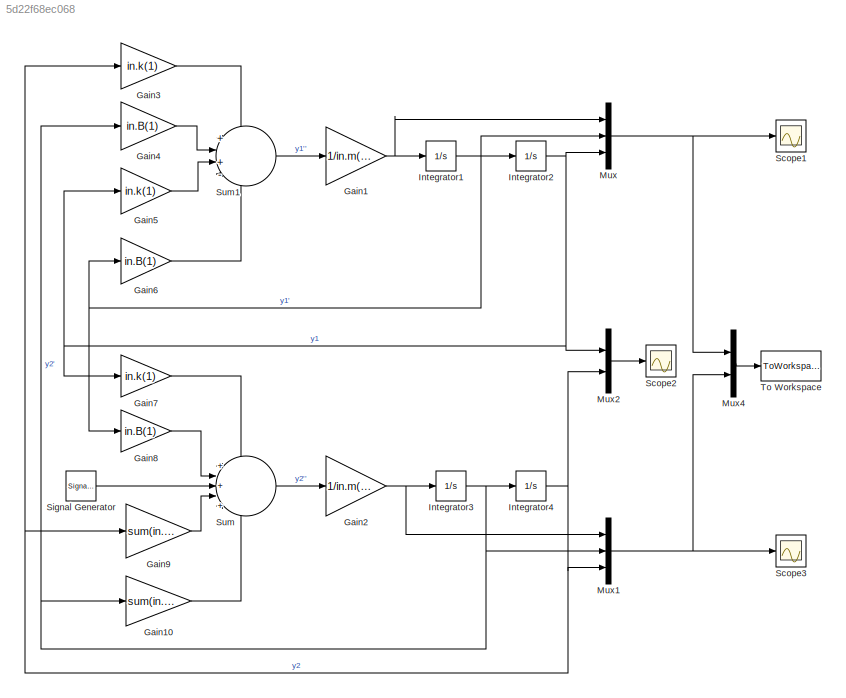
MODEL slx_5d22f68ec068
KIND model
BLOCK [Gain] Gain1
  Gain = 1/in.m(1)
  OutDataTypeStr = Inherit: Inherit via internal rule
  ParamDataTypeStr = Inherit: Inherit via internal rule
  SaturateOnIntegerOverflow = off
BLOCK [Gain] Gain10
  Gain = sum(in.B)
  OutDataTypeStr = Inherit: Inherit via internal rule
  ParamDataTypeStr = Inherit: Inherit via internal rule
  SaturateOnIntegerOverflow = off
BLOCK [Gain] Gain2
  Gain = 1/in.m(2)
  OutDataTypeStr = Inherit: Inherit via internal rule
  ParamDataTypeStr = Inherit: Inherit via internal rule
  SaturateOnIntegerOverflow = off
BLOCK [Gain] Gain3
  Gain = in.k(1)
  OutDataTypeStr = Inherit: Inherit via internal rule
  ParamDataTypeStr = Inherit: Inherit via internal rule
  SaturateOnIntegerOverflow = off
BLOCK [Gain] Gain4
  Gain = in.B(1)
  OutDataTypeStr = Inherit: Inherit via internal rule
  ParamDataTypeStr = Inherit: Inherit via internal rule
  SaturateOnIntegerOverflow = off
BLOCK [Gain] Gain5
  Gain = in.k(1)
  OutDataTypeStr = Inherit: Inherit via internal rule
  ParamDataTypeStr = Inherit: Inherit via internal rule
  SaturateOnIntegerOverflow = off
BLOCK [Gain] Gain6
  Gain = in.B(1)
  OutDataTypeStr = Inherit: Inherit via internal rule
  ParamDataTypeStr = Inherit: Inherit via internal rule
  SaturateOnIntegerOverflow = off
BLOCK [Gain] Gain7
  Gain = in.k(1)
  OutDataTypeStr = Inherit: Inherit via internal rule
  ParamDataTypeStr = Inherit: Inherit via internal rule
  SaturateOnIntegerOverflow = off
BLOCK [Gain] Gain8
  Gain = in.B(1)
  OutDataTypeStr = Inherit: Inherit via internal rule
  ParamDataTypeStr = Inherit: Inherit via internal rule
  SaturateOnIntegerOverflow = off
BLOCK [Gain] Gain9
  Gain = sum(in.k)
  OutDataTypeStr = Inherit: Inherit via internal rule
  ParamDataTypeStr = Inherit: Inherit via internal rule
  SaturateOnIntegerOverflow = off
BLOCK [Integrator] Integrator1
  InitialCondition = param.ic(2)
  Ports = [1, 1]
BLOCK [Integrator] Integrator2
  InitialCondition = param.ic(1)
  Ports = [1, 1]
BLOCK [Integrator] Integrator3
  InitialCondition = param.ic(4)
  Ports = [1, 1]
BLOCK [Integrator] Integrator4
  InitialCondition = param.ic(3)
  Ports = [1, 1]
BLOCK [Mux] Mux
  DisplayOption = bar
  Inputs = 3
  Ports = [3, 1]
BLOCK [Mux] Mux1
  DisplayOption = bar
  Inputs = 3
  Ports = [3, 1]
BLOCK [Mux] Mux2
  DisplayOption = bar
  Inputs = 2
  Ports = [2, 1]
BLOCK [Mux] Mux4
  DisplayOption = bar
  Inputs = 2
  Ports = [2, 1]
BLOCK [Scope] Scope1
  Floating = off
  LimitDataPoints = off
  NumInputPorts = 1
  Ports = [1]
  ShowLegends = off
BLOCK [Scope] Scope2
  Floating = off
  LimitDataPoints = off
  NumInputPorts = 1
  Ports = [1]
  SaveName = ScopeData2
  ShowLegends = off
  YMax = 1
  YMin = -1
BLOCK [Scope] Scope3
  Floating = off
  LimitDataPoints = off
  NumInputPorts = 1
  Ports = [1]
  SaveName = ScopeData1
  ShowLegends = off
BLOCK [SignalGenerator] Signal Generator
  Amplitude = in.F
  Ports = [0, 1]
BLOCK [Sum] Sum
  IconShape = round
  InputSameDT = off
  Inputs = +|+|+|-|-
  OutDataTypeStr = Inherit: Inherit via internal rule
  Ports = [5, 1]
  SaturateOnIntegerOverflow = off
BLOCK [Sum] Sum1
  IconShape = round
  InputSameDT = off
  Inputs = +|+-|-
  OutDataTypeStr = Inherit: Inherit via internal rule
  Ports = [4, 1]
  SaturateOnIntegerOverflow = off
BLOCK [ToWorkspace] To Workspace
  FixptAsFi = on
  MaxDataPoints = inf
  Ports = [1]
  SampleTime = -1
  Save2DSignal = 3-D array (concatenate along third dimension)
  SaveFormat = Timeseries
  VariableName = simout
LINE Gain10:1 -> Sum:5
NET Gain1:1 -> Integrator1:1, Mux:1
NET Gain2:1 -> Integrator3:1, Mux1:1
LINE Gain3:1 -> Sum1:1
LINE Gain4:1 -> Sum1:2
LINE Gain5:1 -> Sum1:3
LINE Gain6:1 -> Sum1:4
LINE Gain7:1 -> Sum:1
LINE Gain8:1 -> Sum:2
LINE Gain9:1 -> Sum:4
NET Integrator1:1 -> Gain6:1, Gain8:1, Integrator2:1, Mux:2
NET Integrator2:1 -> Gain5:1, Gain7:1, Mux2:1, Mux:3
NET Integrator3:1 -> Gain10:1, Gain4:1, Integrator4:1, Mux1:2
NET Integrator4:1 -> Gain3:1, Gain9:1, Mux1:3, Mux2:2
NET Mux1:1 -> Mux4:2, Scope3:1
LINE Mux2:1 -> Scope2:1
LINE Mux4:1 -> To Workspace:1
NET Mux:1 -> Mux4:1, Scope1:1
LINE Signal Generator:1 -> Sum:3
LINE Sum1:1 -> Gain1:1
LINE Sum:1 -> Gain2:1
note: NET lines group one-source signal fan-out (src -> all destinations, sorted); 1:1 wires keep LINE
